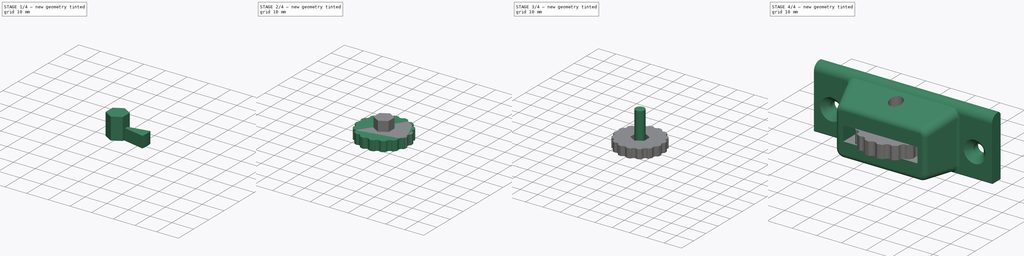
[diagram: build sequence overview — one tinted view per stage of 4, left to right]
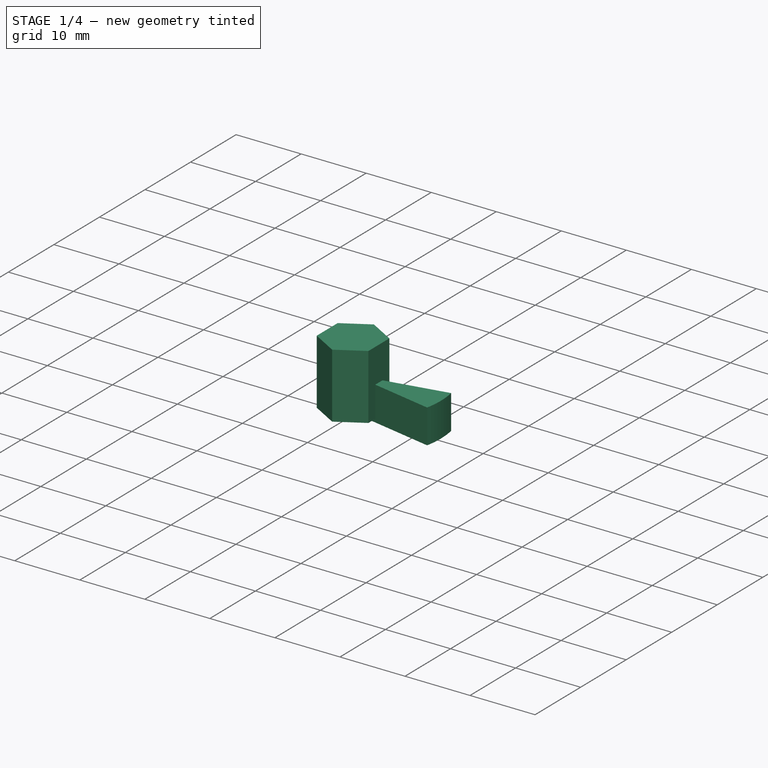
[diagram: stage 1 of 4 — iso view after this stage's code; geometry added in this stage tinted green]
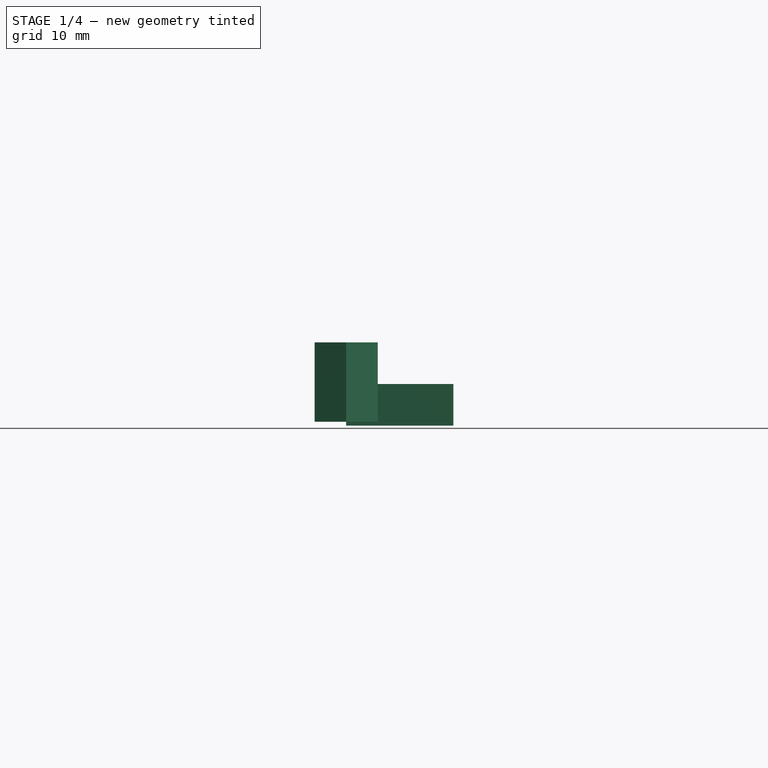
[diagram: stage 1 of 4 — front view after this stage's code; geometry added in this stage tinted green]
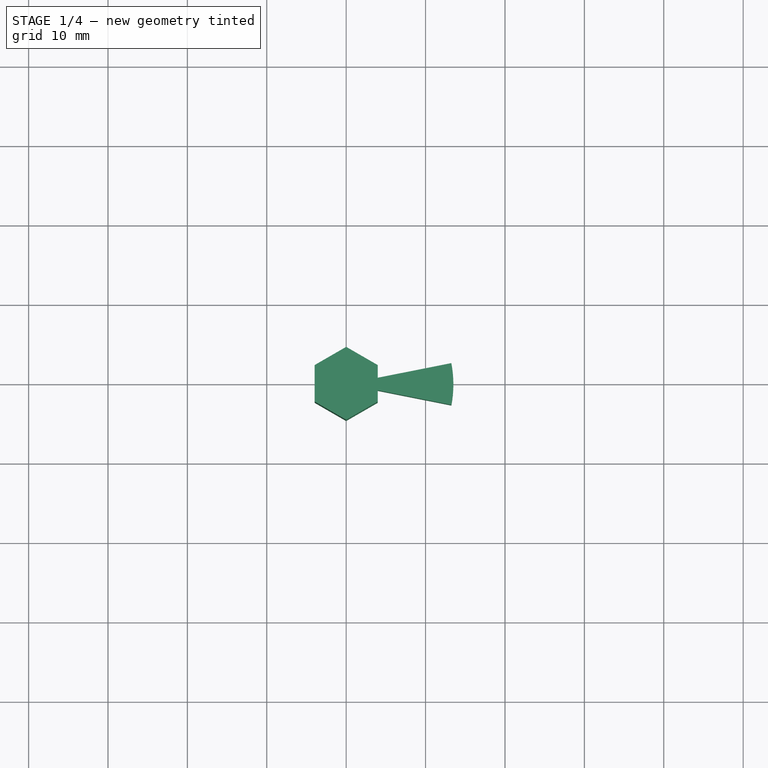
[diagram: stage 1 of 4 — top view after this stage's code; geometry added in this stage tinted green]
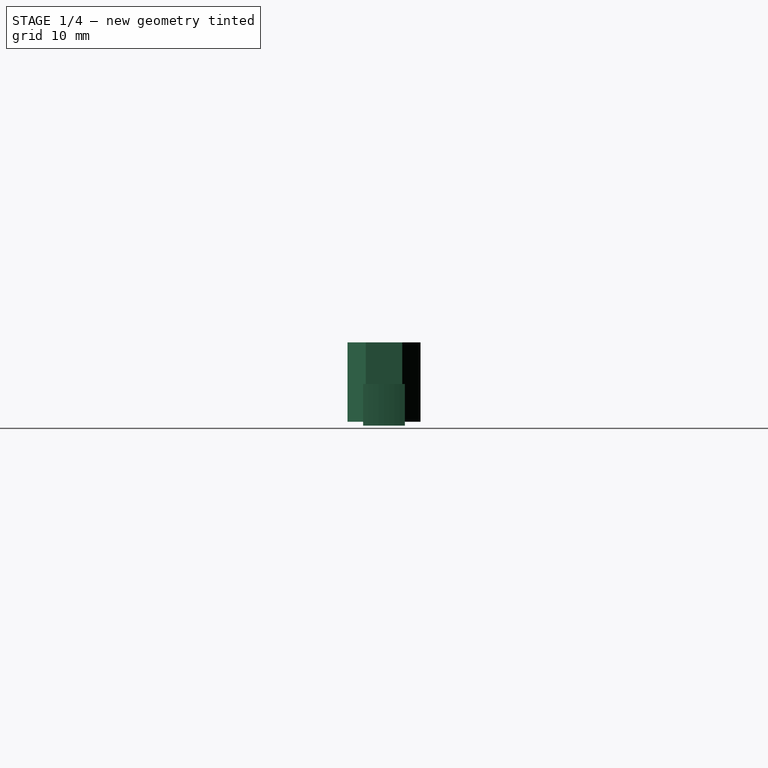
[diagram: stage 1 of 4 — right view after this stage's code; geometry added in this stage tinted green]
FCSTD DOCUMENT  (FreeCAD 0.16RUnknown)
Label: FocusWheel
License: All rights reserved
LicenseURL: http://en.wikipedia.org/wiki/All_rights_reserved
objects: Part::FeaturePython×4, Sketcher::SketchObject×3, App::DocumentObjectGroup×3, Part::Cut×2, PartDesign::Revolution×1, PartDesign::Pocket×1, Part::Cylinder×1, Part::Fillet×1, Part::Feature×1, Spreadsheet::Sheet×1, PartDesign::Pad×1
note: 18 computed .brp shape members not serialized (recipe doc carries the construction recipe); baked Part::Feature solids carry a one-line shape summary decoded from their .brp

FEATURE [Sketcher::SketchObject] Sketch  label="Base"
  Placement = pos=(0,0,0) rot=(1,0,0;1.5708rad)
  sketch-geometry (4):
    g0: LineSegment StartX=0 StartY=0 StartZ=0 EndX=13.5 EndY=0 EndZ=0
    g1: LineSegment StartX=13.5 StartY=0 StartZ=0 EndX=13.5 EndY=5.25 EndZ=0
    g2: LineSegment StartX=13.5 StartY=5.25 StartZ=0 EndX=0 EndY=5.25 EndZ=0
    g3: LineSegment StartX=0 StartY=5.25 StartZ=0 EndX=0 EndY=0 EndZ=0
  constraints (12):
    c: Coincident(g0,g1)
    c: Coincident(g1,g2)
    c: Coincident(g3,g0)
    c: Vertical(g3)
    c: Vertical(g1)
    c: Horizontal(g0)
    c: Horizontal(g2)
    c: DistanceY(g3,g3) = 5.25
    c: PointOnObject(g0,g-1)
    c: DistanceX(g0) = 13.5
    c: Coincident(g2,g3)
    c: Coincident(g0,g-1)
FEATURE [PartDesign::Revolution] Revolution  label="Base001"
  Angle = 22.5
  Axis = (0,0,1)
  Base = (0,0,0)
  Midplane = true
  Placement = pos=(0,0,0) rot=(1,0,0;1.5708rad)
  ReferenceAxis = -> Sketch [V_Axis]
  Reversed = true
  Sketch = -> Sketch
FEATURE [Part::Feature] Fillet002  label="T slot extrusion 20x20x200.001"
  Placement = pos=(-100,9,-7) rot=(0,-1,0;1.5708rad)
  shape: bbox 200 x 20 x 20 mm, 51 faces (baked)
FEATURE [App::DocumentObjectGroup] Group  label="Reference"
  Group = -> [FocusWheelHolder_01,Fillet002]
FEATURE [Spreadsheet::Sheet] Spreadsheet001  label="pars"
  cells = A1=Bolts and Nuts; B1=Value; D1=Components; E1=Value; A2=Thread Tight Tolerance (Radius, ratio); B2(ThrTighRatio)=0.96; D2=Tight Cilinder Tolerances (Radius, mm); E2(CilTight)=0.1; A3=Thread Tight Tolerance (Radius, mm); B3(ThrTightmm)=0.1; D3=Loose Cilinder Tolerances (Radius, mm); E3(CilLoose)=0.15; A5=Nut Slot Width Clearance (mm); B5(NutWidthClearmm)=0.1; A6=Nut Slot Thickess Clearance (mm); B6(NutThickClearmm)=0.1; A13=Particular parameters; B13=Value; A14=Drive Nut Tightness; B14(DriveNutTight)=0.05
FEATURE [PartDesign::Pad] Pad  label="NutSlot001"
  Length = 10
  Length2 = 100
  Sketch = -> Sketch003
  Type = 0
FEATURE [App::DocumentObjectGroup] Group002  label="Component_src"
  Group = -> [Cylinder,Pad]
FEATURE [Part::FeaturePython] Clone  label="Clone of NutSlot001"  # Draft clone (typed FeaturePython)
  Objects = -> [Pad]
  Placement = pos=(0,0,0.5) rot=(0,0,1;0rad)
  Scale = (1,1,1)
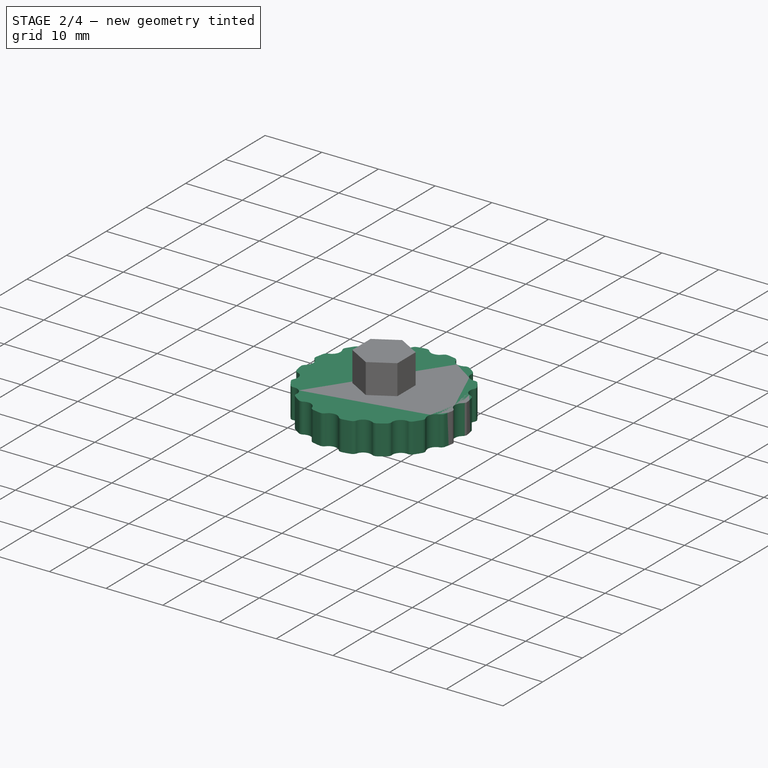
[diagram: stage 2 of 4 — iso view after this stage's code; geometry added in this stage tinted green]
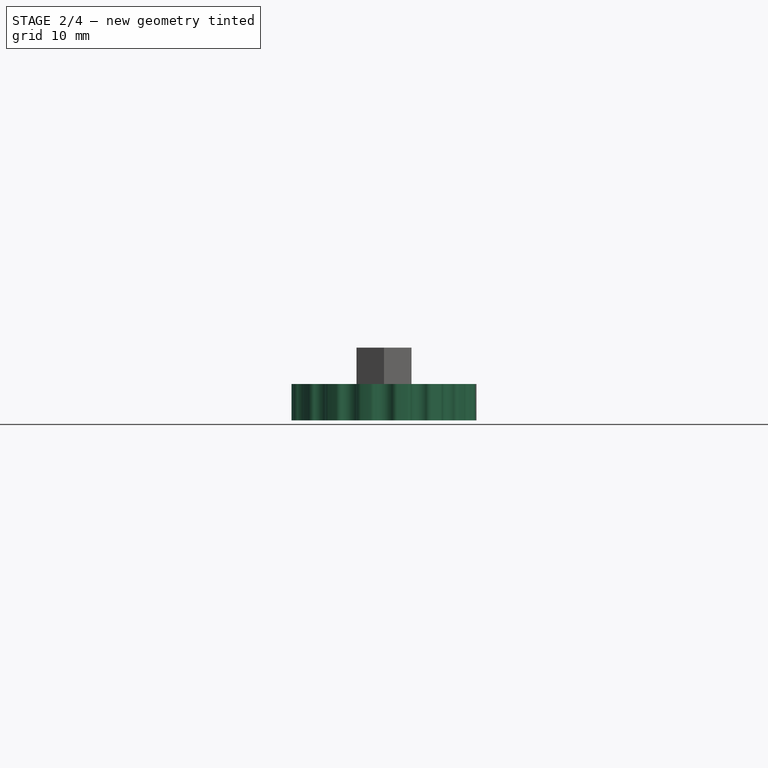
[diagram: stage 2 of 4 — front view after this stage's code; geometry added in this stage tinted green]
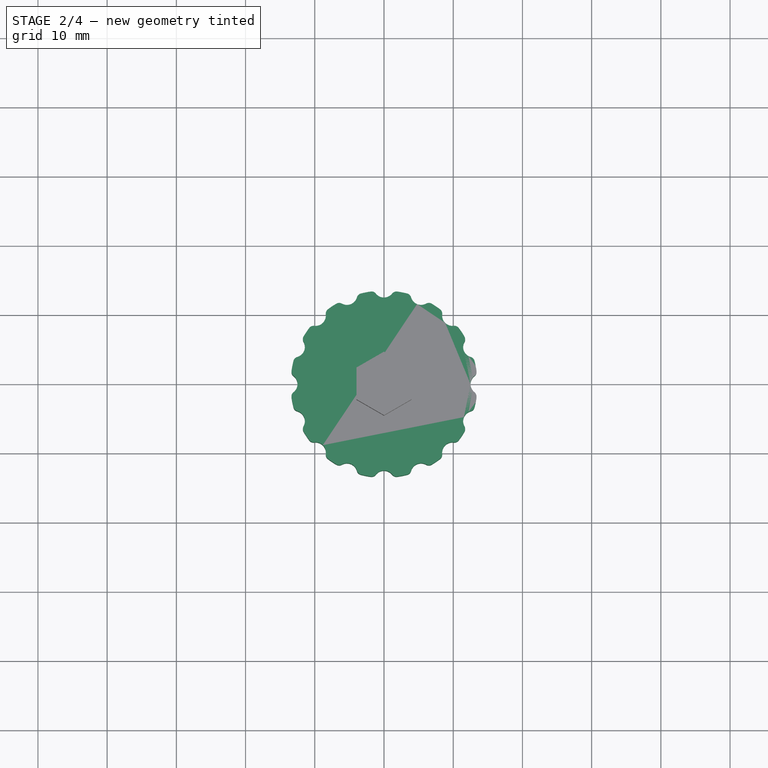
[diagram: stage 2 of 4 — top view after this stage's code; geometry added in this stage tinted green]
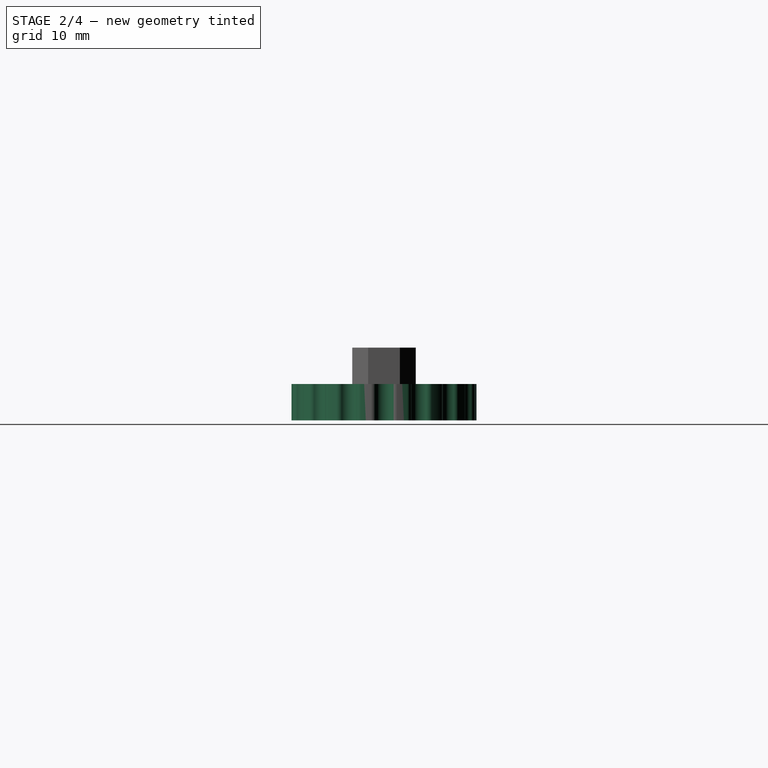
[diagram: stage 2 of 4 — right view after this stage's code; geometry added in this stage tinted green]
FEATURE [Sketcher::SketchObject] Sketch001  label="Ridge"
  Placement = pos=(0,0,5.25) rot=(0,0,1;3.14159rad)
  Support = -> Revolution [Face3]
  sketch-geometry (1):
    g0: Circle CenterX=-14 CenterY=0 CenterZ=0 NormalX=0 NormalY=0 NormalZ=1 Radius=1.5
  constraints (3):
    c: Radius(g0) = 1.5
    c: Distance(g-1,g0) = 14
    c: PointOnObject(g0,g-1)
FEATURE [PartDesign::Pocket] Pocket  label="Ridge001"
  Length = 5
  Placement = pos=(0,0,0) rot=(1,0,0;1.5708rad)
  Sketch = -> Sketch001
  Type = 1
FEATURE [Part::Fillet] Fillet
  Base = -> Pocket
  Edges = 2 edges r=0.8: [Edge9,Edge12]
FEATURE [Part::FeaturePython] Array  label="PolarPattern"  # Draft array (typed FeaturePython)
  Angle = 360
  ArrayType = 1
  Axis = (0,0,1)
  Base = -> Fillet
  Center = (0,0,0)
  Fuse = true
  IntervalAxis = (0,0,0)
  IntervalX = (1,0,0)
  IntervalY = (0,1,0)
  IntervalZ = (0,0,0)
  NumberPolar = 16
  NumberX = 1
  NumberY = 1
  NumberZ = 1
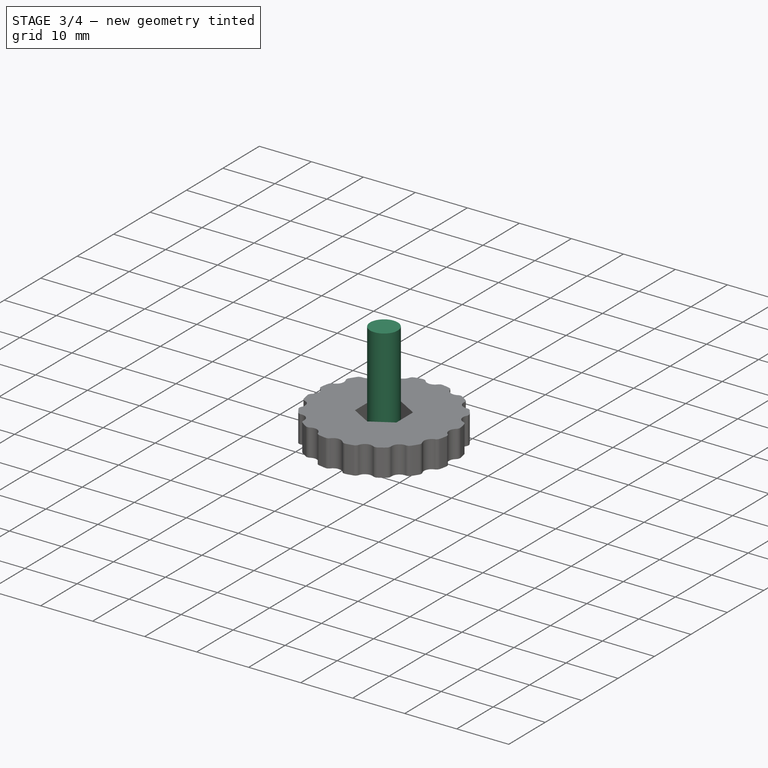
[diagram: stage 3 of 4 — iso view after this stage's code; geometry added in this stage tinted green]
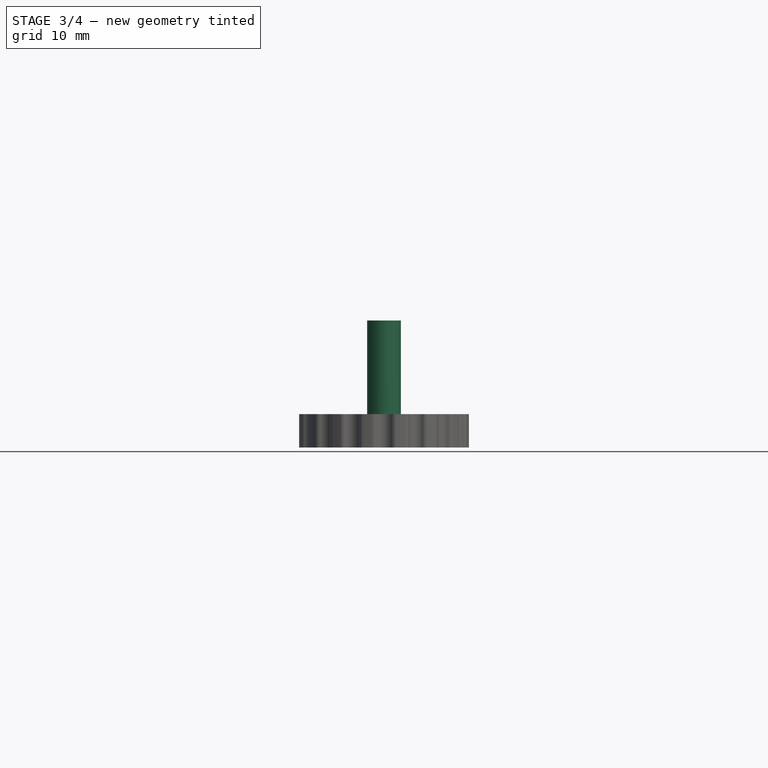
[diagram: stage 3 of 4 — front view after this stage's code; geometry added in this stage tinted green]
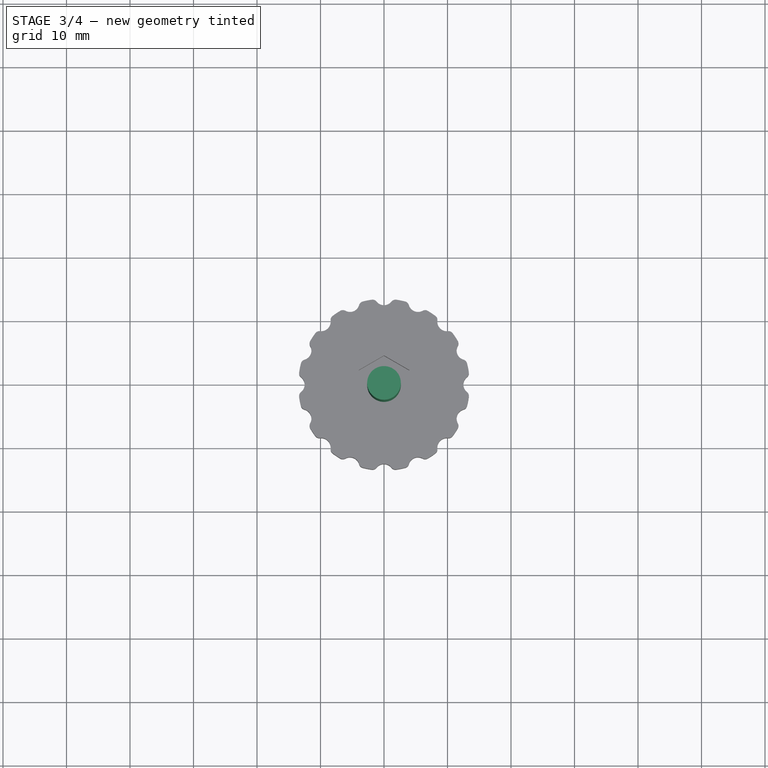
[diagram: stage 3 of 4 — top view after this stage's code; geometry added in this stage tinted green]
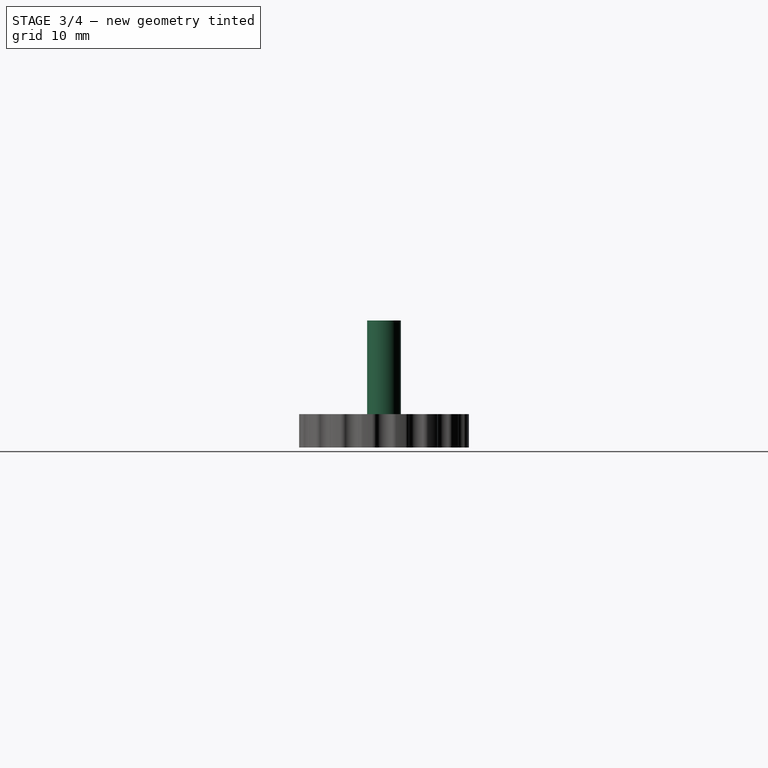
[diagram: stage 3 of 4 — right view after this stage's code; geometry added in this stage tinted green]
FEATURE [Sketcher::SketchObject] Sketch003  label="NutSlot"
  expr: Constraints[19] = 8 - pars.DriveNutTight
  sketch-geometry (7):
    g0: LineSegment StartX=3.975 StartY=-2.29497 StartZ=0 EndX=3.975 EndY=2.29497 EndZ=0
    g1: LineSegment StartX=3.975 StartY=2.29497 StartZ=0 EndX=0 EndY=4.58993 EndZ=0
    g2: LineSegment StartX=0 StartY=4.58993 StartZ=0 EndX=-3.975 EndY=2.29497 EndZ=0
    g3: LineSegment StartX=-3.975 StartY=2.29497 StartZ=0 EndX=-3.975 EndY=-2.29497 EndZ=0
    g4: LineSegment StartX=-3.975 StartY=-2.29497 StartZ=0 EndX=0 EndY=-4.58993 EndZ=0
    g5: LineSegment StartX=0 StartY=-4.58993 StartZ=0 EndX=3.975 EndY=-2.29497 EndZ=0
    g6: Circle [constr] CenterX=0 CenterY=0 CenterZ=0 NormalX=0 NormalY=0 NormalZ=1 Radius=4.58993
  constraints (16):
    c: Coincident(g0,g1)
    c: Coincident(g1,g2)
    c: Coincident(g2,g3)
    c: Coincident(g3,g4)
    c: Coincident(g4,g5)
    c: Coincident(g5,g0)
    c: Equal(g0, g1-g5) x5
    c: PointOnObject(g0,g6)
    c: PointOnObject(g1,g6)
    c: PointOnObject(g2,g6)
    c: PointOnObject(g3,g6)
    c: PointOnObject(g4,g6)
    c: PointOnObject(g5,g6)
    c: Coincident(g6,g-1)
    c: Vertical(g0)
    c: DistanceX(g2,g0) = 7.95
FEATURE [Part::Cylinder] Cylinder  label="M5ThrRod"
  Angle = 360
  Height = 20
  Radius = 2.65
  expr: Radius = 2.5 + pars.CilLoose
FEATURE [Part::Cut] Cut
  Base = -> Array
  Tool = -> Clone
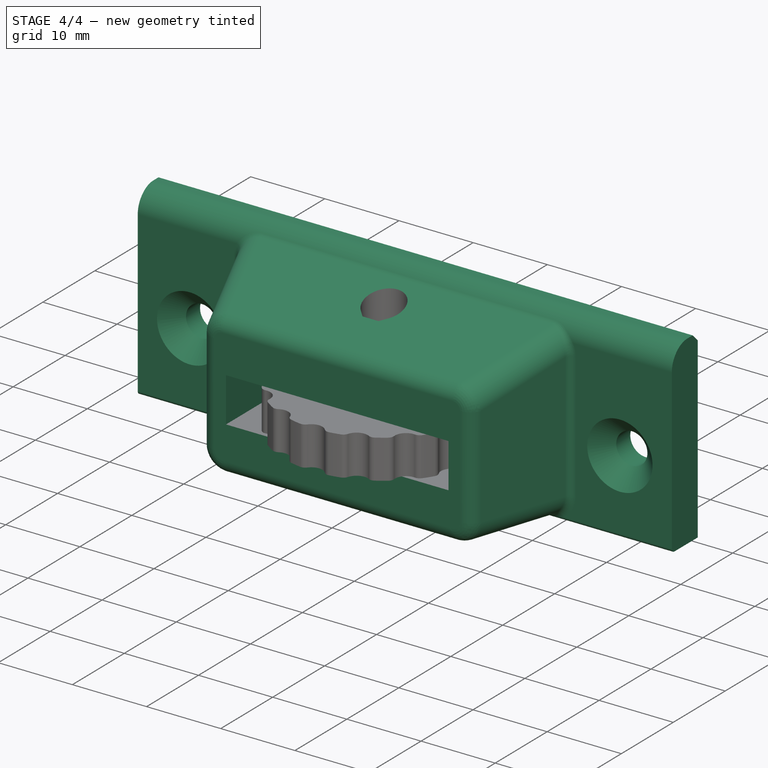
[diagram: stage 4 of 4 — iso view after this stage's code; geometry added in this stage tinted green]
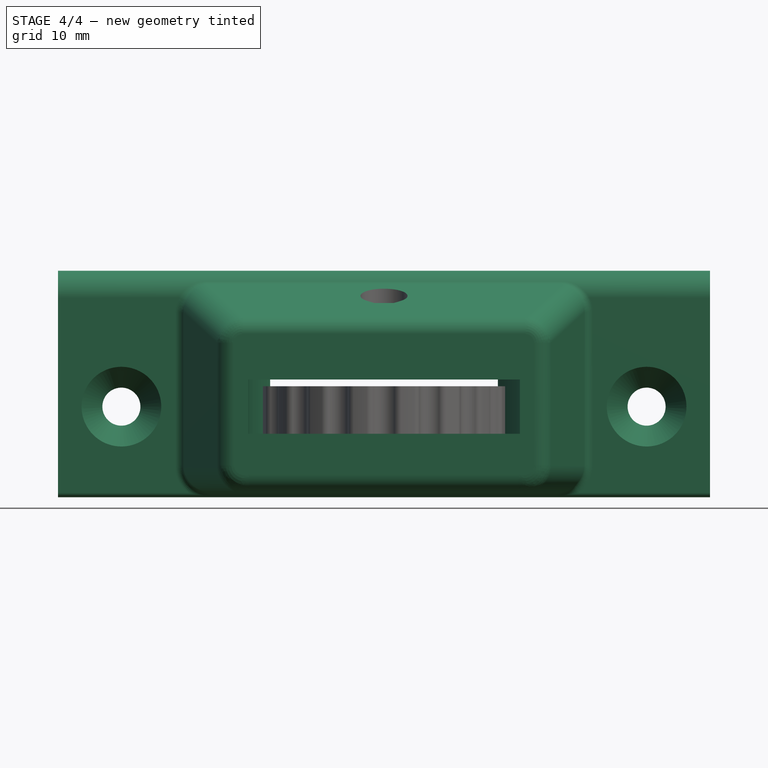
[diagram: stage 4 of 4 — front view after this stage's code; geometry added in this stage tinted green]
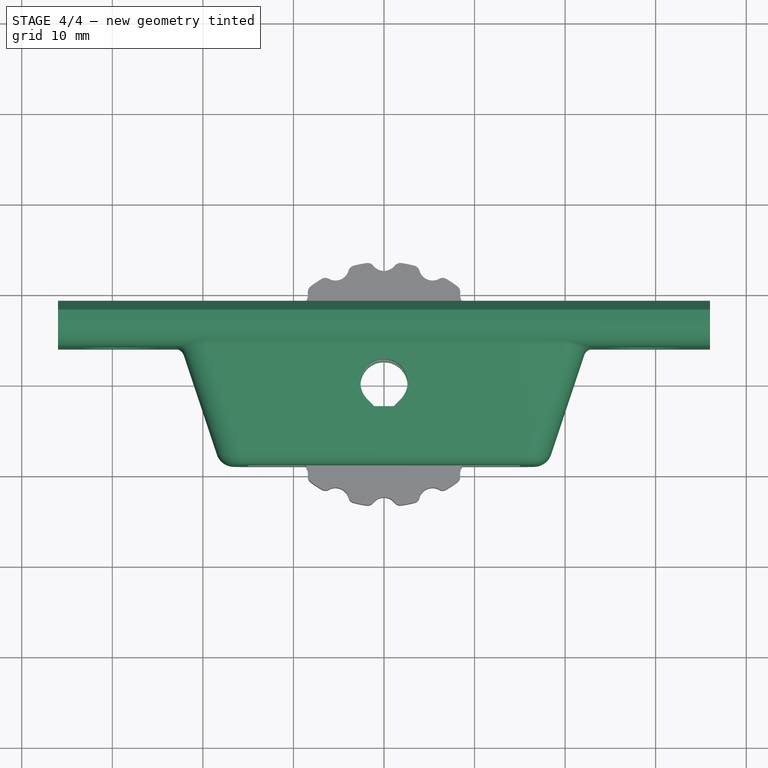
[diagram: stage 4 of 4 — top view after this stage's code; geometry added in this stage tinted green]
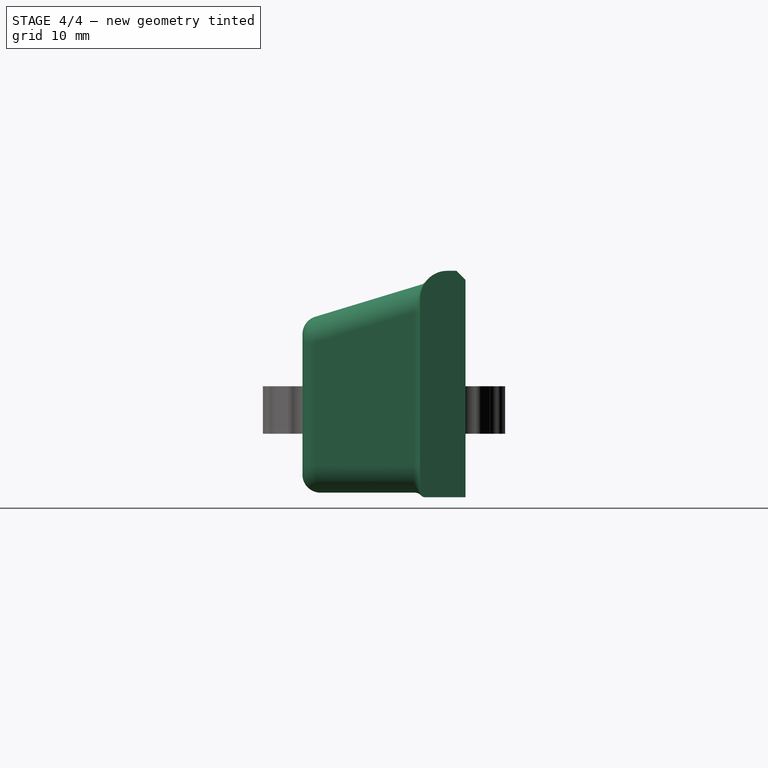
[diagram: stage 4 of 4 — right view after this stage's code; geometry added in this stage tinted green]
FEATURE [Part::FeaturePython] FocusWheelHolder_01  label="FocusWheelHolder"  # a2plus imported part (geometry in sourceFile) (typed FeaturePython)
  Placement = pos=(0,9,3) rot=(0,0,1;0rad)
  fixedPosition = true
  sourceFile = ./FocusWheelHolder.fcstd
  timeLastImport = 1.52166e+09
  updateColors = true
FEATURE [Part::FeaturePython] Clone001  label="Clone of M5ThrRod"  # Draft clone (typed FeaturePython)
  Objects = -> [Cylinder]
  Placement = pos=(0,0,-3) rot=(0,0,1;0rad)
  Scale = (1,1,1)
FEATURE [Part::Cut] Cut001  label="HardwareCuts"
  Base = -> Cut
  Tool = -> Clone001
FEATURE [App::DocumentObjectGroup] Group001  label="src"
  Group = -> [Revolution,Pocket,Fillet,Cut001]
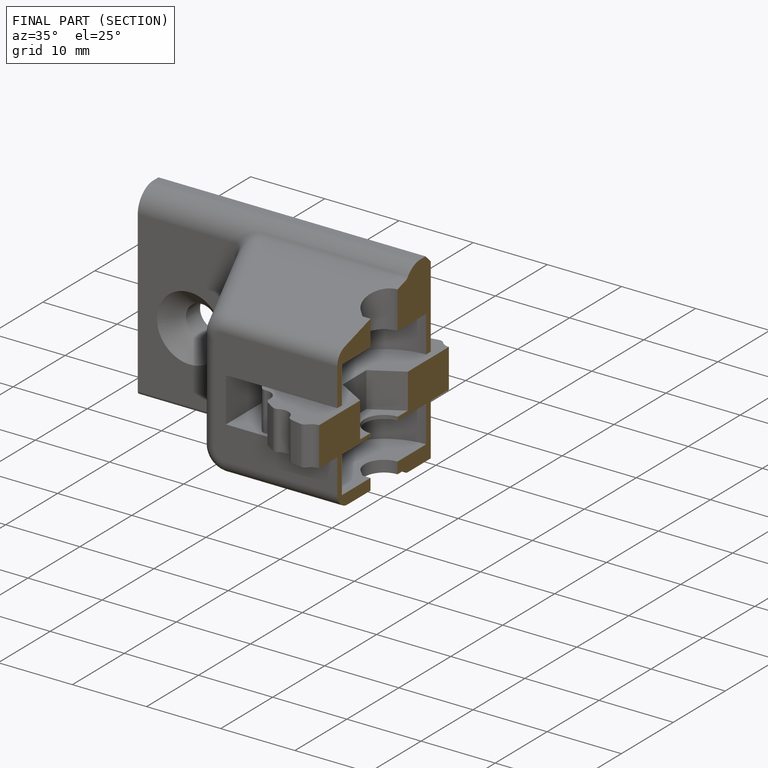
[diagram: finished part — half-section view (interior)]
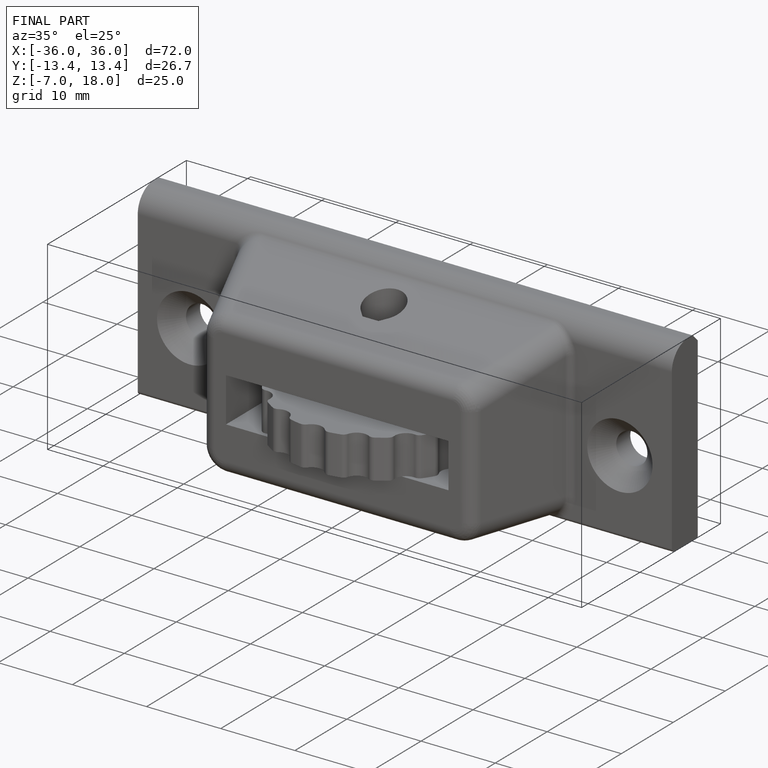
[diagram: finished part — iso view with bounding-box wireframe]
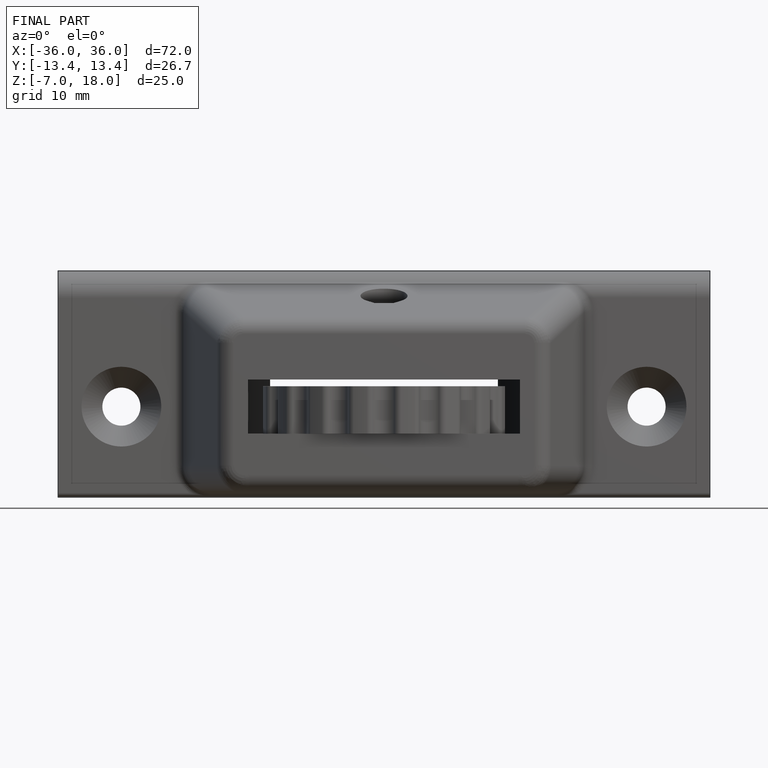
[diagram: finished part — front view with bounding-box wireframe]
